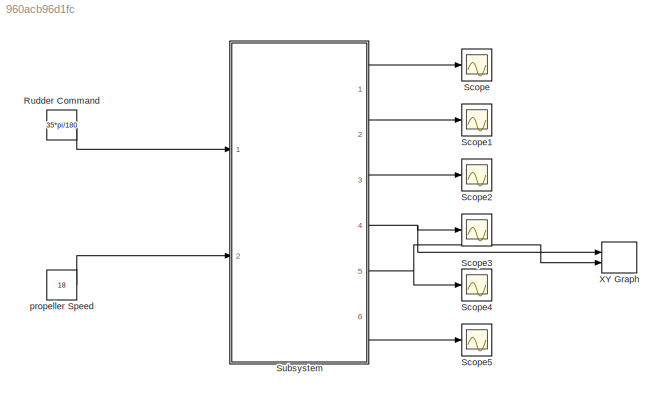
MODEL slx_960acb96d1fc
KIND model
CONFIG AbsTol = auto
CONFIG EnableMultiTasking = off
CONFIG FixedStep = auto
CONFIG MaxStep = auto
CONFIG MinStep = auto
CONFIG RelTol = 1e-3
CONFIG SampleTimeConstraint = Unconstrained
CONFIG SolverName = VariableStepAuto
CONFIG StartTime = 0.0
CONFIG StopTime = 100
BLOCK [Constant] Rudder Command
  Value = 35*pi/180
BLOCK [Scope] Scope
  Floating = off
  NumInputPorts = 1
  Ports = [1]
  ScopeSpecificationString = Simulink.scopes.TimeScopeBlockCfg('CurrentConfiguration', extmgr.ConfigurationSet(extmgr.Configuration('Core','General UI',true),extmgr.Configuration('Core','Source UI',true),extmgr.Configuration('Sources','WiredSimulink',true),extmgr.Configuration('Visuals','Time Domain',true,'SerializedDisplays',{struct('MinYLimReal','0.54648','MaxYLimReal','1.37982','YLabelReal','','MinYLimMag','0.54648','MaxYL...<+1329ch>
BLOCK [Scope] Scope1
  Floating = off
  NumInputPorts = 1
  Ports = [1]
  ScopeSpecificationString = Simulink.scopes.TimeScopeBlockCfg('CurrentConfiguration', extmgr.ConfigurationSet(extmgr.Configuration('Core','General UI',true),extmgr.Configuration('Core','Source UI',true),extmgr.Configuration('Sources','WiredSimulink',true,'DataLoggingVariableName','ScopeData1'),extmgr.Configuration('Visuals','Time Domain',true),extmgr.Configuration('Tools','Plot Navigation',true),extmgr.Configuration('Tools',...<+40ch>
BLOCK [Scope] Scope2
  Floating = off
  NumInputPorts = 1
  Ports = [1]
  ScopeSpecificationString = Simulink.scopes.TimeScopeBlockCfg('CurrentConfiguration', extmgr.ConfigurationSet(extmgr.Configuration('Core','General UI',true),extmgr.Configuration('Core','Source UI',true),extmgr.Configuration('Sources','WiredSimulink',true,'DataLoggingVariableName','ScopeData2'),extmgr.Configuration('Visuals','Time Domain',true,'SerializedDisplays',{struct('MinYLimReal','-0.0102','MaxYLimReal','0.09176','YLabe...<+1368ch>
BLOCK [Scope] Scope3
  Floating = off
  NumInputPorts = 1
  Ports = [1]
  ScopeSpecificationString = Simulink.scopes.TimeScopeBlockCfg('CurrentConfiguration', extmgr.ConfigurationSet(extmgr.Configuration('Core','General UI',true),extmgr.Configuration('Core','Source UI',true),extmgr.Configuration('Sources','WiredSimulink',true,'DataLoggingVariableName','ScopeData3'),extmgr.Configuration('Visuals','Time Domain',true,'SerializedDisplays',{struct('MinYLimReal','-2.38678','MaxYLimReal','21.481','YLabe...<+1366ch>
BLOCK [Scope] Scope4
  Floating = off
  NumInputPorts = 1
  Ports = [1]
  ScopeSpecificationString = Simulink.scopes.TimeScopeBlockCfg('CurrentConfiguration', extmgr.ConfigurationSet(extmgr.Configuration('Core','General UI',true),extmgr.Configuration('Core','Source UI',true),extmgr.Configuration('Sources','WiredSimulink',true,'DataLoggingVariableName','ScopeData4'),extmgr.Configuration('Visuals','Time Domain',true,'SerializedDisplays',{struct('MinYLimReal','-0.0102','MaxYLimReal','0.09176','YLabe...<+1368ch>
BLOCK [Scope] Scope5
  Floating = off
  NumInputPorts = 1
  Ports = [1]
  ScopeSpecificationString = Simulink.scopes.TimeScopeBlockCfg('CurrentConfiguration', extmgr.ConfigurationSet(extmgr.Configuration('Core','General UI',true),extmgr.Configuration('Core','Source UI',true),extmgr.Configuration('Sources','WiredSimulink',true,'DataLoggingVariableName','ScopeData5'),extmgr.Configuration('Visuals','Time Domain',true),extmgr.Configuration('Tools','Plot Navigation',true),extmgr.Configuration('Tools',...<+40ch>
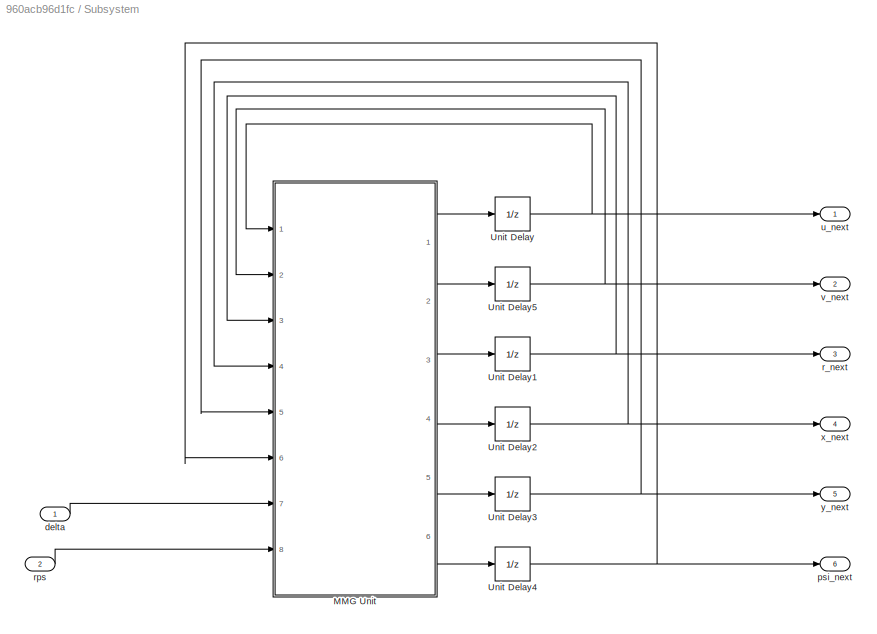
BLOCK [SubSystem] Subsystem
  Ports = [2, 6]
  RequestExecContextInheritance = off
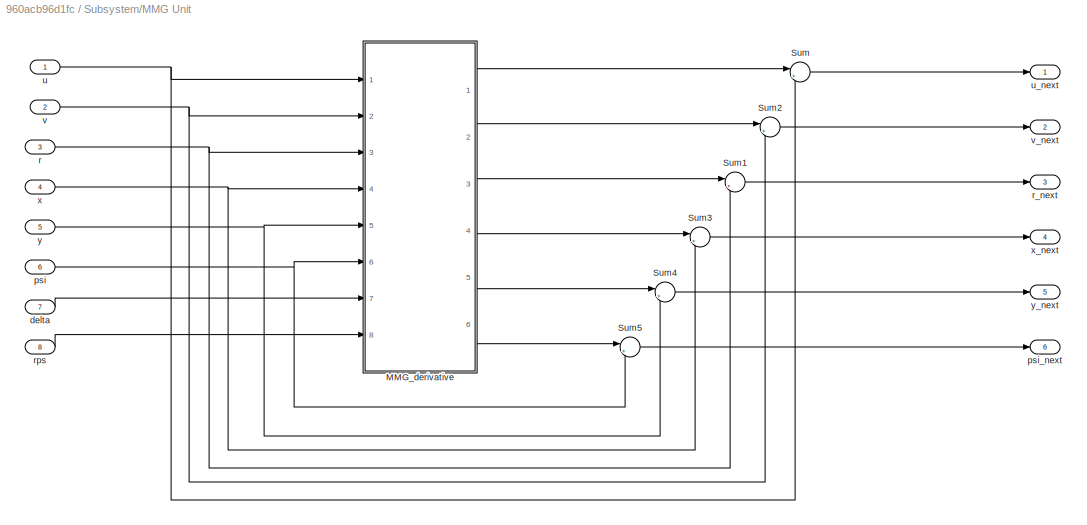
BLOCK [SubSystem] Subsystem/MMG Unit
  Ports = [8, 6]
  RequestExecContextInheritance = off
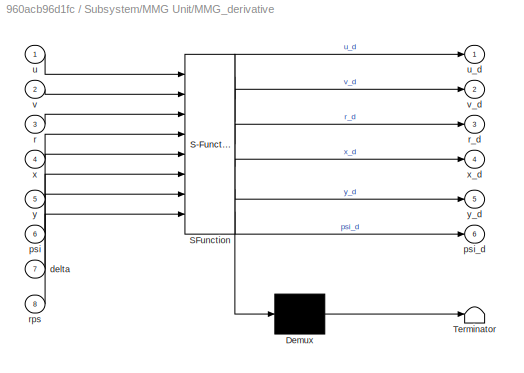
BLOCK [SubSystem] Subsystem/MMG Unit/MMG_derivative
  ErrorFcn = Stateflow.Translate.translate
  PermitHierarchicalResolution = ExplicitOnly
  Ports = [8, 6]
  RequestExecContextInheritance = off
  SFBlockType = MATLAB Function
  TreatAsAtomicUnit = on
BLOCK [Demux] Subsystem/MMG Unit/MMG_derivative/ Demux 
  Outputs = 1
  Ports = [1, 1]
BLOCK [S-Function] Subsystem/MMG Unit/MMG_derivative/ SFunction 
  EnableBusSupport = on
  FunctionName = sf_sfun
  PortCounts = [8 7]
  Ports = [8, 7]
  SFcnIsStateOwnerBlock = off
  SFunctionDeploymentMode = off
  Tag = Stateflow S-Function 2
BLOCK [Terminator] Subsystem/MMG Unit/MMG_derivative/ Terminator 
BLOCK [Inport] Subsystem/MMG Unit/MMG_derivative/delta
  Port = 7
BLOCK [Inport] Subsystem/MMG Unit/MMG_derivative/psi
  Port = 6
BLOCK [Outport] Subsystem/MMG Unit/MMG_derivative/psi_d
  Port = 6
BLOCK [Inport] Subsystem/MMG Unit/MMG_derivative/r
  Port = 3
BLOCK [Outport] Subsystem/MMG Unit/MMG_derivative/r_d
  Port = 3
BLOCK [Inport] Subsystem/MMG Unit/MMG_derivative/rps
  Port = 8
BLOCK [Inport] Subsystem/MMG Unit/MMG_derivative/u
BLOCK [Outport] Subsystem/MMG Unit/MMG_derivative/u_d
BLOCK [Inport] Subsystem/MMG Unit/MMG_derivative/v
  Port = 2
BLOCK [Outport] Subsystem/MMG Unit/MMG_derivative/v_d
  Port = 2
BLOCK [Inport] Subsystem/MMG Unit/MMG_derivative/x
  Port = 4
BLOCK [Outport] Subsystem/MMG Unit/MMG_derivative/x_d
  Port = 4
BLOCK [Inport] Subsystem/MMG Unit/MMG_derivative/y
  Port = 5
BLOCK [Outport] Subsystem/MMG Unit/MMG_derivative/y_d
  Port = 5
BLOCK [Sum] Subsystem/MMG Unit/Sum
  Inputs = |++
  Ports = [2, 1]
BLOCK [Sum] Subsystem/MMG Unit/Sum1
  Inputs = |++
  Ports = [2, 1]
BLOCK [Sum] Subsystem/MMG Unit/Sum2
  Inputs = |++
  Ports = [2, 1]
BLOCK [Sum] Subsystem/MMG Unit/Sum3
  Inputs = |++
  Ports = [2, 1]
BLOCK [Sum] Subsystem/MMG Unit/Sum4
  Inputs = |++
  Ports = [2, 1]
BLOCK [Sum] Subsystem/MMG Unit/Sum5
  Inputs = |++
  Ports = [2, 1]
BLOCK [Inport] Subsystem/MMG Unit/delta
  Port = 7
BLOCK [Inport] Subsystem/MMG Unit/psi
  Port = 6
BLOCK [Outport] Subsystem/MMG Unit/psi_next
  Port = 6
BLOCK [Inport] Subsystem/MMG Unit/r
  Port = 3
BLOCK [Outport] Subsystem/MMG Unit/r_next
  Port = 3
BLOCK [Inport] Subsystem/MMG Unit/rps
  Port = 8
BLOCK [Inport] Subsystem/MMG Unit/u
BLOCK [Outport] Subsystem/MMG Unit/u_next
BLOCK [Inport] Subsystem/MMG Unit/v
  Port = 2
BLOCK [Outport] Subsystem/MMG Unit/v_next
  Port = 2
BLOCK [Inport] Subsystem/MMG Unit/x
  Port = 4
BLOCK [Outport] Subsystem/MMG Unit/x_next
  Port = 4
BLOCK [Inport] Subsystem/MMG Unit/y
  Port = 5
BLOCK [Outport] Subsystem/MMG Unit/y_next
  Port = 5
BLOCK [UnitDelay] Subsystem/Unit Delay
  HasFrameUpgradeWarning = on
  InitialCondition = 1.28
  SampleTime = 0.05
BLOCK [UnitDelay] Subsystem/Unit Delay1
  HasFrameUpgradeWarning = on
  SampleTime = 0.05
BLOCK [UnitDelay] Subsystem/Unit Delay2
  HasFrameUpgradeWarning = on
  SampleTime = 0.05
BLOCK [UnitDelay] Subsystem/Unit Delay3
  HasFrameUpgradeWarning = on
  SampleTime = 0.05
BLOCK [UnitDelay] Subsystem/Unit Delay4
  HasFrameUpgradeWarning = on
  SampleTime = 0.05
BLOCK [UnitDelay] Subsystem/Unit Delay5
  HasFrameUpgradeWarning = on
  SampleTime = 0.05
BLOCK [Inport] Subsystem/delta
BLOCK [Outport] Subsystem/psi_next
  Port = 6
BLOCK [Outport] Subsystem/r_next
  Port = 3
BLOCK [Inport] Subsystem/rps
  Port = 2
BLOCK [Outport] Subsystem/u_next
BLOCK [Outport] Subsystem/v_next
  Port = 2
BLOCK [Outport] Subsystem/x_next
  Port = 4
BLOCK [Outport] Subsystem/y_next
  Port = 5
BLOCK [Record] XY Graph
  CompatibilityTag = XY
  FileSettingsInternal = {"entries":[{"content":{"excelSettings":{"content":{},"type":"Streamout.ExcelSettings"}},"type":"Streamout.FileSettingStorage","uuid":"59b6c840-506a-4456-8290-f92885f89b41"}],"packageUris":["http://schema.mathworks.com/mf0/streamout_blocks/R2020a"],"version":"1.0"}
  Layout = [1 1]
  Ports = [2]
  SignalsInternal = {"entries":[{"content":{"signals":[{"content":{"blockPath":["MMG_Model/XY Graph"],"channel":[],"dimensions":[1],"domain":"MMG_Model/XY Graph","lineColor":"#a2142f","plots":[1],"port":1,"sid":[""],"signalID":28,"signalName":"Subsystem:4"},"type":"RecordBlkView.Signal","uuid":"2fd87267-67ca-49b3-b818-3d1452393c92"},{"content":{"blockPath":["MMG_Model/XY Graph"],"channel":[],"dimensions":[1],"domain"...<+371ch>
  VisualizationBindings = {"xyplotplugin":{"info":[{"series":[{"bindingParametersList":[{"parameter":"X-Axis","signalID":28,"signalName":"Subsystem:4"},{"parameter":"Y-Axis","signalID":32,"signalName":"Subsystem:5"}],"seriesID":42964}],"subplotID":1}]}}
BLOCK [Constant] propeller Speed
  Value = 18
LINE Rudder Command:1 -> Subsystem:1
LINE Subsystem/MMG Unit/MMG_derivative:1 -> Subsystem/MMG Unit/Sum:1
LINE Subsystem/MMG Unit/MMG_derivative:2 -> Subsystem/MMG Unit/Sum2:1
LINE Subsystem/MMG Unit/MMG_derivative:3 -> Subsystem/MMG Unit/Sum1:1
LINE Subsystem/MMG Unit/MMG_derivative:4 -> Subsystem/MMG Unit/Sum3:1
LINE Subsystem/MMG Unit/MMG_derivative:5 -> Subsystem/MMG Unit/Sum4:1
LINE Subsystem/MMG Unit/MMG_derivative:6 -> Subsystem/MMG Unit/Sum5:1
LINE Subsystem/MMG Unit/Sum1:1 -> Subsystem/MMG Unit/r_next:1
LINE Subsystem/MMG Unit/Sum2:1 -> Subsystem/MMG Unit/v_next:1
LINE Subsystem/MMG Unit/Sum3:1 -> Subsystem/MMG Unit/x_next:1
LINE Subsystem/MMG Unit/Sum4:1 -> Subsystem/MMG Unit/y_next:1
LINE Subsystem/MMG Unit/Sum5:1 -> Subsystem/MMG Unit/psi_next:1
LINE Subsystem/MMG Unit/Sum:1 -> Subsystem/MMG Unit/u_next:1
LINE Subsystem/MMG Unit/delta:1 -> Subsystem/MMG Unit/MMG_derivative:7
NET Subsystem/MMG Unit/psi:1 -> Subsystem/MMG Unit/MMG_derivative:6, Subsystem/MMG Unit/Sum5:2
NET Subsystem/MMG Unit/r:1 -> Subsystem/MMG Unit/MMG_derivative:3, Subsystem/MMG Unit/Sum1:2
LINE Subsystem/MMG Unit/rps:1 -> Subsystem/MMG Unit/MMG_derivative:8
NET Subsystem/MMG Unit/u:1 -> Subsystem/MMG Unit/MMG_derivative:1, Subsystem/MMG Unit/Sum:2
NET Subsystem/MMG Unit/v:1 -> Subsystem/MMG Unit/MMG_derivative:2, Subsystem/MMG Unit/Sum2:2
NET Subsystem/MMG Unit/x:1 -> Subsystem/MMG Unit/MMG_derivative:4, Subsystem/MMG Unit/Sum3:2
NET Subsystem/MMG Unit/y:1 -> Subsystem/MMG Unit/MMG_derivative:5, Subsystem/MMG Unit/Sum4:2
LINE Subsystem/MMG Unit:1 -> Subsystem/Unit Delay:1
LINE Subsystem/MMG Unit:2 -> Subsystem/Unit Delay5:1
LINE Subsystem/MMG Unit:3 -> Subsystem/Unit Delay1:1
LINE Subsystem/MMG Unit:4 -> Subsystem/Unit Delay2:1
LINE Subsystem/MMG Unit:5 -> Subsystem/Unit Delay3:1
LINE Subsystem/MMG Unit:6 -> Subsystem/Unit Delay4:1
NET Subsystem/Unit Delay1:1 -> Subsystem/MMG Unit:3, Subsystem/r_next:1
NET Subsystem/Unit Delay2:1 -> Subsystem/MMG Unit:4, Subsystem/x_next:1
NET Subsystem/Unit Delay3:1 -> Subsystem/MMG Unit:5, Subsystem/y_next:1
NET Subsystem/Unit Delay4:1 -> Subsystem/MMG Unit:6, Subsystem/psi_next:1
NET Subsystem/Unit Delay5:1 -> Subsystem/MMG Unit:2, Subsystem/v_next:1
NET Subsystem/Unit Delay:1 -> Subsystem/MMG Unit:1, Subsystem/u_next:1
LINE Subsystem/delta:1 -> Subsystem/MMG Unit:7
LINE Subsystem/rps:1 -> Subsystem/MMG Unit:8
LINE Subsystem:1 -> Scope:1
LINE Subsystem:2 -> Scope1:1
LINE Subsystem:3 -> Scope2:1
NET Subsystem:4 -> Scope3:1, XY Graph:1
NET Subsystem:5 -> Scope4:1, XY Graph:2
LINE Subsystem:6 -> Scope5:1
LINE propeller Speed:1 -> Subsystem:2
note: NET lines group one-source signal fan-out (src -> all destinations, sorted); 1:1 wires keep LINE
CHART Subsystem/MMG Unit/MMG_derivative states=1 transitions=1
  STATE_LABEL 'eML_blk_kernel()'
  STATE_LABEL 'SCRIPT:\nfunction [u_d,v_d,r_d,x_d,y_d,psi_d] = MMG_Time_Derivative(u,v,r,x,y,psi,delta,rps)\n%%%%%%%%%%%%%%%%%%%%%%%%%%%%%%%%%%%%%%%%%%%%%%\n%%%%%%%%%% Assertion %%%%%%%%%%%\nif u <= 0\n    u = 0.00001;\nend\nif rps <= 0\n    rps = 1;\nend\n%%%%%%%%%%%%%%%%%%%%%%%%%%%%%%%%%%%%%%%%%%%%%%\nU             = sqrt((u^2)+(v^2));   % Resultant speed\nbeta          = atan(-v/u);        % Hull drift angle at midship\nN...<+3608ch>'
CHART  states=0 transitions=0
